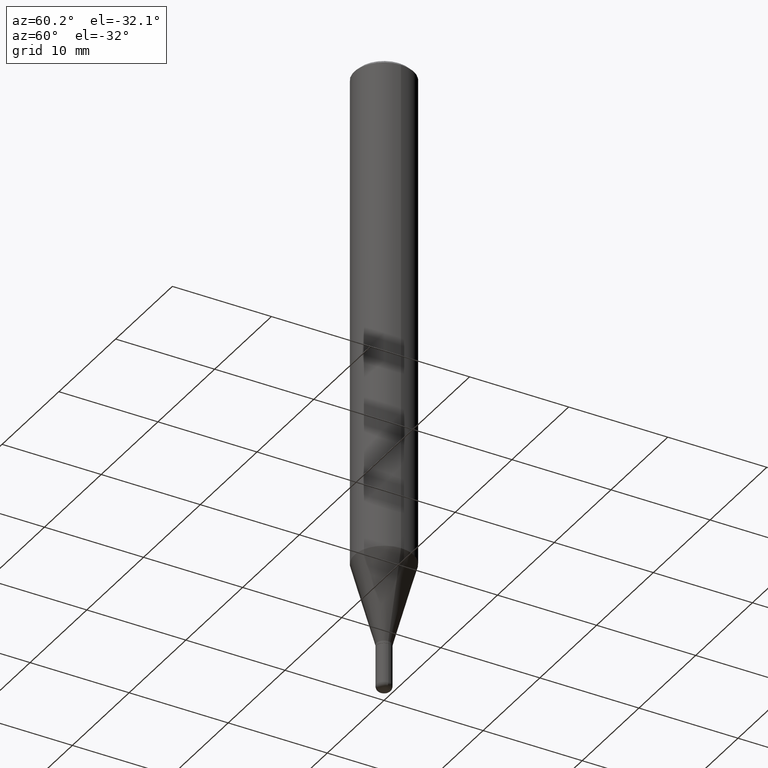
[diagram: clean part render]
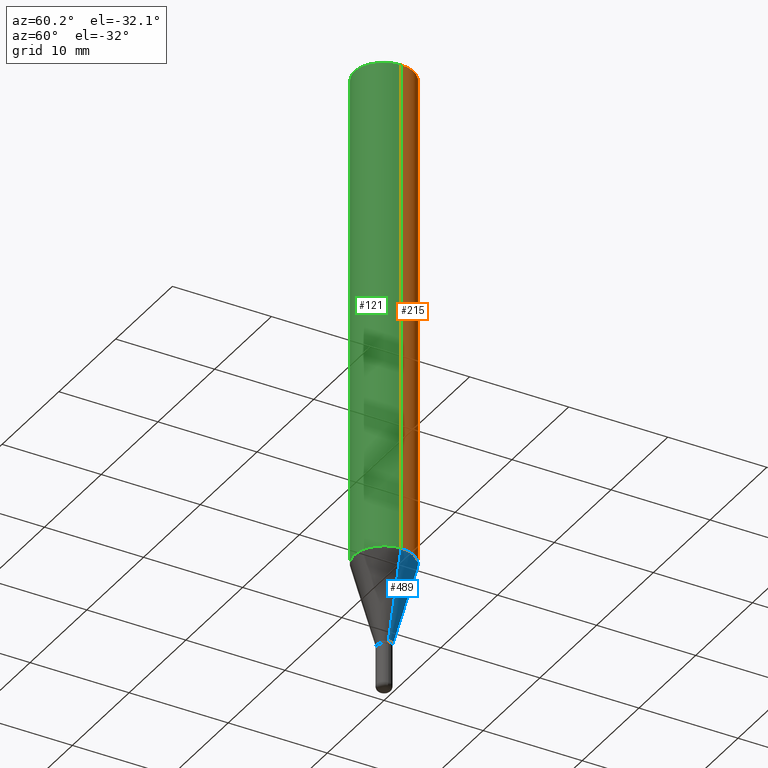
[diagram: same view with three faces highlighted in distinct colors, each labeled with its STEP entity id]
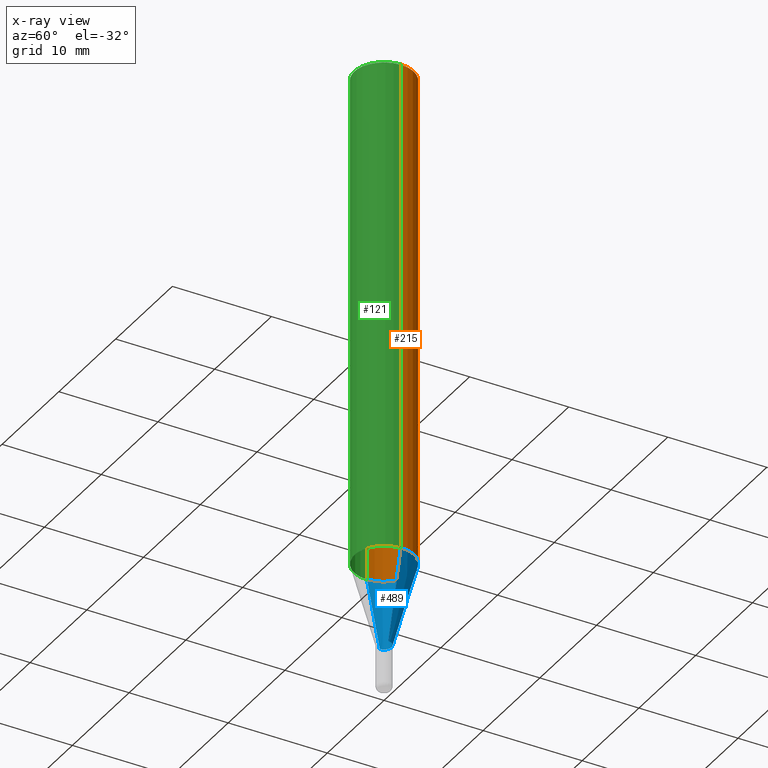
[diagram: x-ray of the same camera — body ghosted, the three highlighted faces saturated]
A machine part, auxiliary view with three faces highlighted in distinct colors.
The next image is the same camera in x-ray (body ghosted, the three faces saturated) — at least one of them is partly hidden behind the body in this view.
Their STEP definitions:

[orange] entity #215 — the highlighted cylindrical surface (edge-blend (fillet) strip) has radius 2.9997 mm, axis along (-0, 0, 1).
#9 = VERTEX_POINT ( 'NONE', #513 ) ;
#10 = EDGE_CURVE ( 'NONE', #9, #352, #92, .T. ) ;
#32 = CYLINDRICAL_SURFACE ( 'NONE', #286, 0.1180999999999999966 ) ;
#41 = CARTESIAN_POINT ( 'NONE',  ( 0.1180999999999999966, -8.770601123173951446E-16, -0.01499999999999995781 ) ) ;
#43 = EDGE_CURVE ( 'NONE', #452, #352, #262, .T. ) ;
#44 = DIRECTION ( 'NONE',  ( -2.445468806185136877E-29, 3.491481338843145188E-15, 1.000000000000000000 ) ) ;
#65 = CIRCLE ( 'NONE', #192, 0.1180999999999999966 ) ;
#75 = VERTEX_POINT ( 'NONE', #326 ) ;
#81 = FACE_OUTER_BOUND ( 'NONE', #455, .T. ) ;
#92 = LINE ( 'NONE', #166, #270 ) ;
#103 = EDGE_CURVE ( 'NONE', #75, #452, #514, .T. ) ;
#106 = AXIS2_PLACEMENT_3D ( 'NONE', #370, #131, #126 ) ;
#117 = ORIENTED_EDGE ( 'NONE', *, *, #300, .T. ) ;
#126 = DIRECTION ( 'NONE',  ( 1.000000000000000000, -6.982962677686266711E-15, 0.000000000000000000 ) ) ;
#131 = DIRECTION ( 'NONE',  ( -2.445468806185136597E-29, 3.491481338843145583E-15, 1.000000000000000000 ) ) ;
#155 = CARTESIAN_POINT ( 'NONE',  ( 0.000000000000000000, 0.000000000000000000, 0.000000000000000000 ) ) ;
#156 = DIRECTION ( 'NONE',  ( -2.445468806185136597E-29, 3.491481338843145583E-15, 1.000000000000000000 ) ) ;
#166 = CARTESIAN_POINT ( 'NONE',  ( -0.1180999999999999966, 8.391509709326782957E-16, -5.809262341591043784E-30 ) ) ;
#175 = VECTOR ( 'NONE', #44, 39.37007874015748143 ) ;
#191 = DIRECTION ( 'NONE',  ( 1.000000000000000000, -6.982962677686266711E-15, 4.876176775795936353E-29 ) ) ;
#192 = AXIS2_PLACEMENT_3D ( 'NONE', #504, #156, #465 ) ;
#215 = ADVANCED_FACE ( 'NONE', ( #81 ), #32, .T. ) ;
#262 = CIRCLE ( 'NONE', #106, 0.1180999999999999966 ) ;
#270 = VECTOR ( 'NONE', #322, 39.37007874015748143 ) ;
#286 = AXIS2_PLACEMENT_3D ( 'NONE', #155, #395, #191 ) ;
#300 = EDGE_CURVE ( 'NONE', #75, #9, #65, .T. ) ;
#322 = DIRECTION ( 'NONE',  ( -2.445468806185136877E-29, 3.491481338843145188E-15, 1.000000000000000000 ) ) ;
#326 = CARTESIAN_POINT ( 'NONE',  ( 0.1180999999999999966, -7.745945274527314976E-15, -1.982326900989775709 ) ) ;
#327 = CARTESIAN_POINT ( 'NONE',  ( -0.1180999999999999966, -2.647663830254927713E-15, -0.01499999999999995781 ) ) ;
#331 = ORIENTED_EDGE ( 'NONE', *, *, #43, .F. ) ;
#352 = VERTEX_POINT ( 'NONE', #327 ) ;
#370 = CARTESIAN_POINT ( 'NONE',  ( 3.668203209277694140E-31, -5.237222008264703607E-17, -0.01499999999999995781 ) ) ;
#395 = DIRECTION ( 'NONE',  ( -2.445468806185136597E-29, 3.491481338843145583E-15, 1.000000000000000000 ) ) ;
#407 = CARTESIAN_POINT ( 'NONE',  ( 0.1180999999999999966, -8.246878922347480654E-16, 5.758764772215000440E-30 ) ) ;
#452 = VERTEX_POINT ( 'NONE', #41 ) ;
#455 = EDGE_LOOP ( 'NONE', ( #117, #501, #331, #456 ) ) ;
#456 = ORIENTED_EDGE ( 'NONE', *, *, #103, .F. ) ;
#465 = DIRECTION ( 'NONE',  ( 1.000000000000000000, -6.982962677686265133E-15, 0.000000000000000000 ) ) ;
#501 = ORIENTED_EDGE ( 'NONE', *, *, #10, .T. ) ;
#504 = CARTESIAN_POINT ( 'NONE',  ( 4.847718600032148277E-29, -6.921257382292565925E-15, -1.982326900989775709 ) ) ;
#513 = CARTESIAN_POINT ( 'NONE',  ( -0.1180999999999999966, -6.082106411359887728E-15, -1.982326900989775709 ) ) ;
#514 = LINE ( 'NONE', #407, #175 ) ;

[blue] entity #489 — the highlighted conical surface has half-angle 15 deg.
#6 = AXIS2_PLACEMENT_3D ( 'NONE', #34, #358, #164 ) ;
#9 = VERTEX_POINT ( 'NONE', #513 ) ;
#34 = CARTESIAN_POINT ( 'NONE',  ( 5.655880254944983613E-29, -8.075098040476427185E-15, -2.312800000000000189 ) ) ;
#56 = DIRECTION ( 'NONE',  ( -2.445468806185136597E-29, 3.491481338843145583E-15, 1.000000000000000000 ) ) ;
#65 = CIRCLE ( 'NONE', #192, 0.1180999999999999966 ) ;
#75 = VERTEX_POINT ( 'NONE', #326 ) ;
#84 = CARTESIAN_POINT ( 'NONE',  ( -0.02954999999999996518, -7.865132662059317828E-15, -2.312800000000000189 ) ) ;
#100 = AXIS2_PLACEMENT_3D ( 'NONE', #289, #56, #374 ) ;
#114 = CARTESIAN_POINT ( 'NONE',  ( 0.02954999999999996518, -8.281444587602056007E-15, -2.312800000000000189 ) ) ;
#134 = ORIENTED_EDGE ( 'NONE', *, *, #438, .T. ) ;
#153 = VERTEX_POINT ( 'NONE', #114 ) ;
#156 = DIRECTION ( 'NONE',  ( -2.445468806185136597E-29, 3.491481338843145583E-15, 1.000000000000000000 ) ) ;
#164 = DIRECTION ( 'NONE',  ( 1.000000000000000000, -6.982962677686270655E-15, 0.000000000000000000 ) ) ;
#183 = ORIENTED_EDGE ( 'NONE', *, *, #304, .F. ) ;
#192 = AXIS2_PLACEMENT_3D ( 'NONE', #504, #156, #465 ) ;
#209 = CIRCLE ( 'NONE', #6, 0.02954999999999996518 ) ;
#226 = DIRECTION ( 'NONE',  ( 0.2588190451025206840, 1.565188264969626504E-15, 0.9659258262890682012 ) ) ;
#231 = CARTESIAN_POINT ( 'NONE',  ( -0.02954999999999996518, -6.973619536709603567E-15, -2.312800000000000189 ) ) ;
#256 = ORIENTED_EDGE ( 'NONE', *, *, #418, .T. ) ;
#289 = CARTESIAN_POINT ( 'NONE',  ( 5.655880254944983613E-29, -8.075098040476427185E-15, -2.312800000000000189 ) ) ;
#298 = ORIENTED_EDGE ( 'NONE', *, *, #300, .F. ) ;
#300 = EDGE_CURVE ( 'NONE', #75, #9, #65, .T. ) ;
#304 = EDGE_CURVE ( 'NONE', #153, #75, #425, .T. ) ;
#311 = EDGE_LOOP ( 'NONE', ( #256, #134, #298, #183 ) ) ;
#317 = DIRECTION ( 'NONE',  ( -0.2588190451025206840, 5.211531920934545520E-15, 0.9659258262890682012 ) ) ;
#325 = VERTEX_POINT ( 'NONE', #231 ) ;
#326 = CARTESIAN_POINT ( 'NONE',  ( 0.1180999999999999966, -7.745945274527314976E-15, -1.982326900989775709 ) ) ;
#348 = VECTOR ( 'NONE', #226, 39.37007874015748854 ) ;
#358 = DIRECTION ( 'NONE',  ( -2.445468806185136597E-29, 3.491481338843145583E-15, 1.000000000000000000 ) ) ;
#374 = DIRECTION ( 'NONE',  ( 1.000000000000000000, -6.982962677686270655E-15, 0.000000000000000000 ) ) ;
#386 = VECTOR ( 'NONE', #317, 39.37007874015748854 ) ;
#402 = CONICAL_SURFACE ( 'NONE', #100, 0.02954999999999996518, 0.2617993877991494078 ) ;
#418 = EDGE_CURVE ( 'NONE', #153, #325, #209, .T. ) ;
#425 = LINE ( 'NONE', #470, #348 ) ;
#438 = EDGE_CURVE ( 'NONE', #325, #9, #474, .T. ) ;
#465 = DIRECTION ( 'NONE',  ( 1.000000000000000000, -6.982962677686265133E-15, 0.000000000000000000 ) ) ;
#470 = CARTESIAN_POINT ( 'NONE',  ( 0.02954999999999996518, -8.281444587602056007E-15, -2.312800000000000189 ) ) ;
#474 = LINE ( 'NONE', #84, #386 ) ;
#489 = ADVANCED_FACE ( 'NONE', ( #491 ), #402, .T. ) ;
#491 = FACE_OUTER_BOUND ( 'NONE', #311, .T. ) ;
#504 = CARTESIAN_POINT ( 'NONE',  ( 4.847718600032148277E-29, -6.921257382292565925E-15, -1.982326900989775709 ) ) ;
#513 = CARTESIAN_POINT ( 'NONE',  ( -0.1180999999999999966, -6.082106411359887728E-15, -1.982326900989775709 ) ) ;

[green] entity #121 — the highlighted cylindrical surface (edge-blend (fillet) strip) has radius 2.9997 mm, axis along (-0, 0, 1).
#5 = DIRECTION ( 'NONE',  ( -2.445468806185136597E-29, 3.491481338843145583E-15, 1.000000000000000000 ) ) ;
#8 = ORIENTED_EDGE ( 'NONE', *, *, #10, .F. ) ;
#9 = VERTEX_POINT ( 'NONE', #513 ) ;
#10 = EDGE_CURVE ( 'NONE', #9, #352, #92, .T. ) ;
#15 = DIRECTION ( 'NONE',  ( 1.000000000000000000, -6.982962677686266711E-15, 0.000000000000000000 ) ) ;
#41 = CARTESIAN_POINT ( 'NONE',  ( 0.1180999999999999966, -8.770601123173951446E-16, -0.01499999999999995781 ) ) ;
#44 = DIRECTION ( 'NONE',  ( -2.445468806185136877E-29, 3.491481338843145188E-15, 1.000000000000000000 ) ) ;
#63 = AXIS2_PLACEMENT_3D ( 'NONE', #179, #5, #490 ) ;
#75 = VERTEX_POINT ( 'NONE', #326 ) ;
#82 = ORIENTED_EDGE ( 'NONE', *, *, #104, .T. ) ;
#92 = LINE ( 'NONE', #166, #270 ) ;
#103 = EDGE_CURVE ( 'NONE', #75, #452, #514, .T. ) ;
#104 = EDGE_CURVE ( 'NONE', #9, #75, #336, .T. ) ;
#119 = EDGE_LOOP ( 'NONE', ( #8, #82, #309, #313 ) ) ;
#121 = ADVANCED_FACE ( 'NONE', ( #373 ), #288, .T. ) ;
#136 = DIRECTION ( 'NONE',  ( -2.445468806185136597E-29, 3.491481338843145583E-15, 1.000000000000000000 ) ) ;
#138 = CARTESIAN_POINT ( 'NONE',  ( 3.668203209277694140E-31, -5.237222008264703607E-17, -0.01499999999999995781 ) ) ;
#166 = CARTESIAN_POINT ( 'NONE',  ( -0.1180999999999999966, 8.391509709326782957E-16, -5.809262341591043784E-30 ) ) ;
#175 = VECTOR ( 'NONE', #44, 39.37007874015748143 ) ;
#176 = CIRCLE ( 'NONE', #463, 0.1180999999999999966 ) ;
#179 = CARTESIAN_POINT ( 'NONE',  ( 0.000000000000000000, 0.000000000000000000, 0.000000000000000000 ) ) ;
#210 = CARTESIAN_POINT ( 'NONE',  ( 4.847718600032148277E-29, -6.921257382292565925E-15, -1.982326900989775709 ) ) ;
#270 = VECTOR ( 'NONE', #322, 39.37007874015748143 ) ;
#288 = CYLINDRICAL_SURFACE ( 'NONE', #63, 0.1180999999999999966 ) ;
#309 = ORIENTED_EDGE ( 'NONE', *, *, #103, .T. ) ;
#313 = ORIENTED_EDGE ( 'NONE', *, *, #510, .F. ) ;
#322 = DIRECTION ( 'NONE',  ( -2.445468806185136877E-29, 3.491481338843145188E-15, 1.000000000000000000 ) ) ;
#326 = CARTESIAN_POINT ( 'NONE',  ( 0.1180999999999999966, -7.745945274527314976E-15, -1.982326900989775709 ) ) ;
#327 = CARTESIAN_POINT ( 'NONE',  ( -0.1180999999999999966, -2.647663830254927713E-15, -0.01499999999999995781 ) ) ;
#330 = DIRECTION ( 'NONE',  ( 1.000000000000000000, -6.982962677686265133E-15, 0.000000000000000000 ) ) ;
#336 = CIRCLE ( 'NONE', #445, 0.1180999999999999966 ) ;
#352 = VERTEX_POINT ( 'NONE', #327 ) ;
#373 = FACE_OUTER_BOUND ( 'NONE', #119, .T. ) ;
#407 = CARTESIAN_POINT ( 'NONE',  ( 0.1180999999999999966, -8.246878922347480654E-16, 5.758764772215000440E-30 ) ) ;
#445 = AXIS2_PLACEMENT_3D ( 'NONE', #210, #136, #330 ) ;
#452 = VERTEX_POINT ( 'NONE', #41 ) ;
#463 = AXIS2_PLACEMENT_3D ( 'NONE', #138, #488, #15 ) ;
#488 = DIRECTION ( 'NONE',  ( -2.445468806185136597E-29, 3.491481338843145583E-15, 1.000000000000000000 ) ) ;
#490 = DIRECTION ( 'NONE',  ( 1.000000000000000000, -6.982962677686266711E-15, 4.876176775795936353E-29 ) ) ;
#510 = EDGE_CURVE ( 'NONE', #352, #452, #176, .T. ) ;
#513 = CARTESIAN_POINT ( 'NONE',  ( -0.1180999999999999966, -6.082106411359887728E-15, -1.982326900989775709 ) ) ;
#514 = LINE ( 'NONE', #407, #175 ) ;